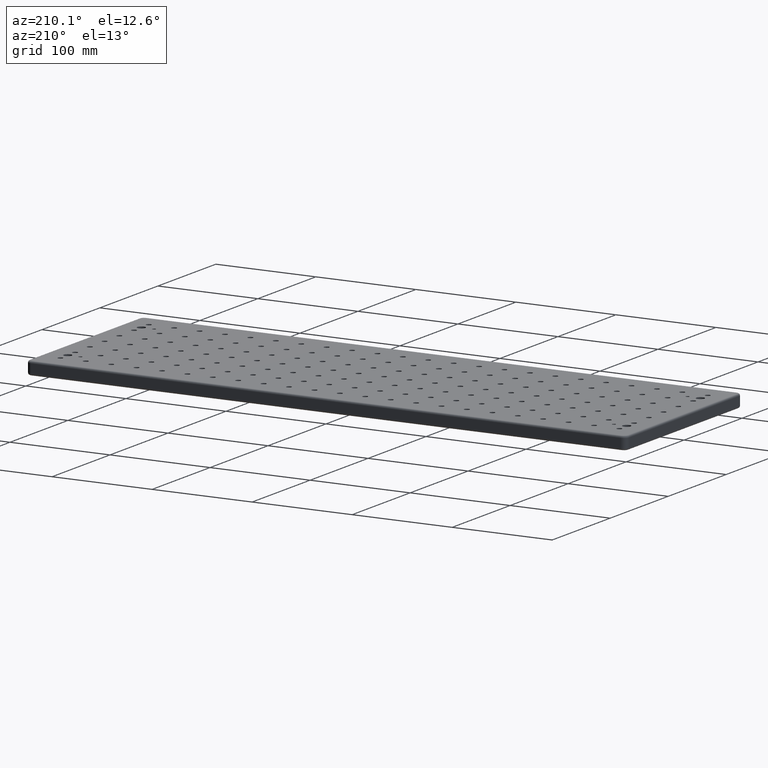
[diagram: clean part render]
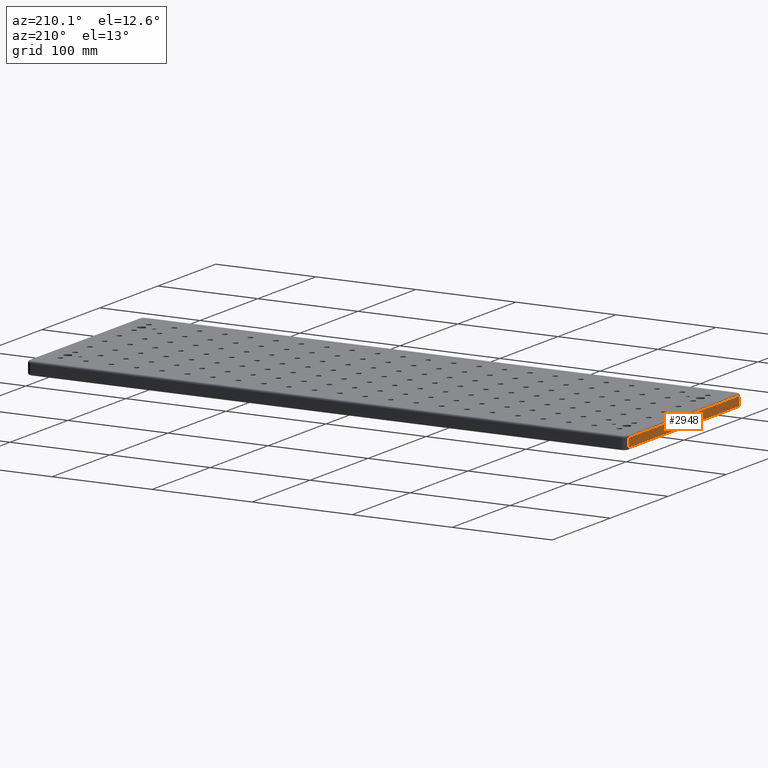
[diagram: same view with one face highlighted and labeled with its STEP entity id]
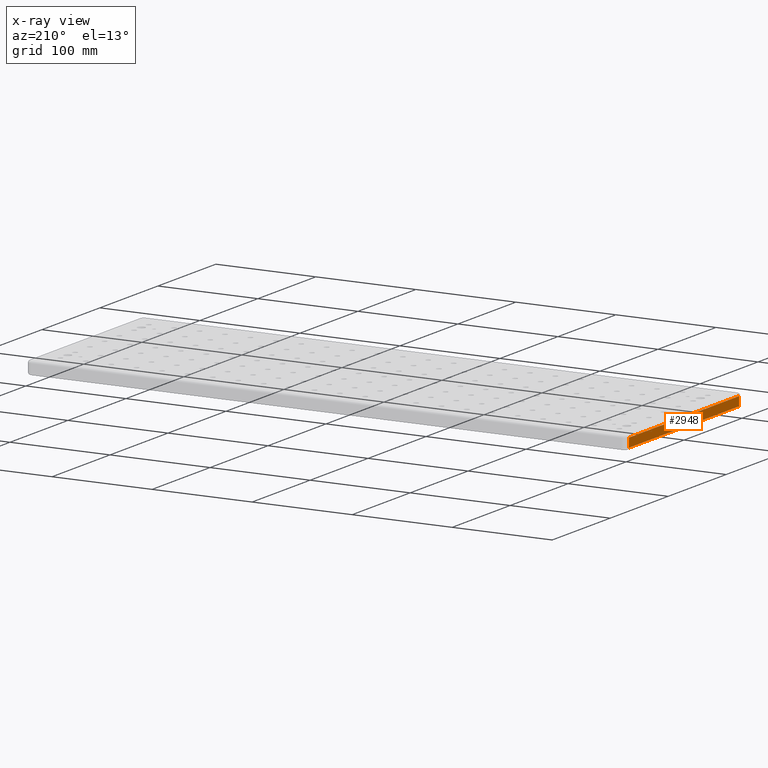
[diagram: x-ray of the same camera — body ghosted, the highlighted face saturated]
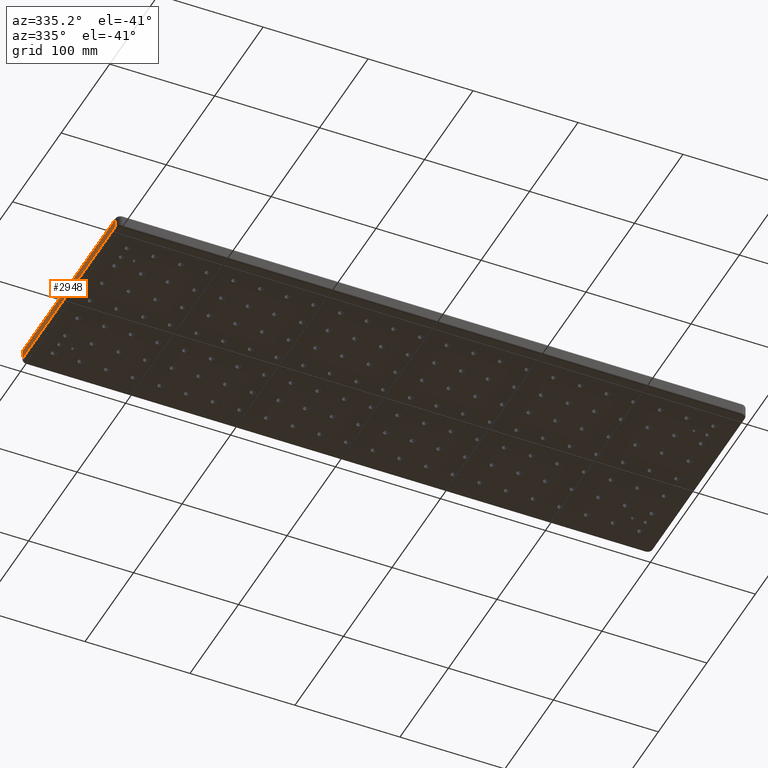
[diagram: same view with one face highlighted and labeled with its STEP entity id]
A machine part, auxiliary view. The second image highlights one B-rep face of the part: STEP entity #2948.
The next image is the same camera in x-ray: the body ghosted, the highlighted face saturated — about 0% of this face is hidden behind the body in this view.
A second angle (auxiliary view) of the same face is appended — the face is thin or edge-on in the first view.
In plain terms, the highlighted planar face has unit normal (-1, 0, 0).
Its self-contained STEP definition (entity closure, byte-faithful):
#54 = DIRECTION ( 'NONE',  ( -0.0000000000000000000, 1.000000000000000000, -0.0000000000000000000 ) ) ;
#80 = FACE_OUTER_BOUND ( 'NONE', #6741, .T. ) ;
#254 = CARTESIAN_POINT ( 'NONE',  ( -300.0000000000000600, 95.00000000000009900, -13.00000000000000000 ) ) ;
#315 = CARTESIAN_POINT ( 'NONE',  ( -300.0000000000000600, 95.00000000000009900, -11.00000000000000000 ) ) ;
#1628 = EDGE_CURVE ( 'NONE', #3776, #10931, #1749, .T. ) ;
#1706 = CARTESIAN_POINT ( 'NONE',  ( -300.0000000000000600, -95.00000000000009900, -13.00000000000000000 ) ) ;
#1749 = LINE ( 'NONE', #2061, #10616 ) ;
#2061 = CARTESIAN_POINT ( 'NONE',  ( -300.0000000000000600, -95.00000000000009900, -11.00000000000000000 ) ) ;
#2948 = ADVANCED_FACE ( 'NONE', ( #80 ), #3760, .T. ) ;
#3121 = CARTESIAN_POINT ( 'NONE',  ( -300.0000000000000600, 95.00000000000009900, -2.000000000000000000 ) ) ;
#3260 = ORIENTED_EDGE ( 'NONE', *, *, #11167, .T. ) ;
#3760 = PLANE ( 'NONE',  #3764 ) ;
#3764 = AXIS2_PLACEMENT_3D ( 'NONE', #1706, #11110, #13139 ) ;
#3776 = VERTEX_POINT ( 'NONE', #315 ) ;
#4781 = CARTESIAN_POINT ( 'NONE',  ( -300.0000000000000600, -95.00000000000009900, -13.00000000000000000 ) ) ;
#5010 = LINE ( 'NONE', #4781, #9440 ) ;
#5276 = VECTOR ( 'NONE', #54, 1000.000000000000000 ) ;
#5390 = ORIENTED_EDGE ( 'NONE', *, *, #7219, .F. ) ;
#5845 = DIRECTION ( 'NONE',  ( 0.0000000000000000000, 0.0000000000000000000, 1.000000000000000000 ) ) ;
#6062 = CARTESIAN_POINT ( 'NONE',  ( -300.0000000000000600, 95.00000000000009900, -2.000000000000001800 ) ) ;
#6741 = EDGE_LOOP ( 'NONE', ( #5390, #12422, #3260, #13495 ) ) ;
#7165 = VECTOR ( 'NONE', #10622, 1000.000000000000000 ) ;
#7219 = EDGE_CURVE ( 'NONE', #3776, #10257, #13083, .T. ) ;
#8070 = LINE ( 'NONE', #3121, #5276 ) ;
#8600 = CARTESIAN_POINT ( 'NONE',  ( -300.0000000000000600, -95.00000000000009900, -2.000000000000003600 ) ) ;
#9440 = VECTOR ( 'NONE', #5845, 1000.000000000000000 ) ;
#9589 = CARTESIAN_POINT ( 'NONE',  ( -300.0000000000000600, -95.00000000000009900, -11.00000000000000000 ) ) ;
#10257 = VERTEX_POINT ( 'NONE', #6062 ) ;
#10616 = VECTOR ( 'NONE', #13572, 1000.000000000000000 ) ;
#10622 = DIRECTION ( 'NONE',  ( 0.0000000000000000000, 0.0000000000000000000, 1.000000000000000000 ) ) ;
#10931 = VERTEX_POINT ( 'NONE', #9589 ) ;
#11110 = DIRECTION ( 'NONE',  ( -1.000000000000000000, 0.0000000000000000000, 0.0000000000000000000 ) ) ;
#11167 = EDGE_CURVE ( 'NONE', #10931, #11411, #5010, .T. ) ;
#11411 = VERTEX_POINT ( 'NONE', #8600 ) ;
#12422 = ORIENTED_EDGE ( 'NONE', *, *, #1628, .T. ) ;
#12478 = EDGE_CURVE ( 'NONE', #11411, #10257, #8070, .T. ) ;
#13083 = LINE ( 'NONE', #254, #7165 ) ;
#13139 = DIRECTION ( 'NONE',  ( 0.0000000000000000000, 0.0000000000000000000, 1.000000000000000000 ) ) ;
#13495 = ORIENTED_EDGE ( 'NONE', *, *, #12478, .T. ) ;
#13572 = DIRECTION ( 'NONE',  ( 0.0000000000000000000, -1.000000000000000000, 0.0000000000000000000 ) ) ;